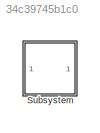
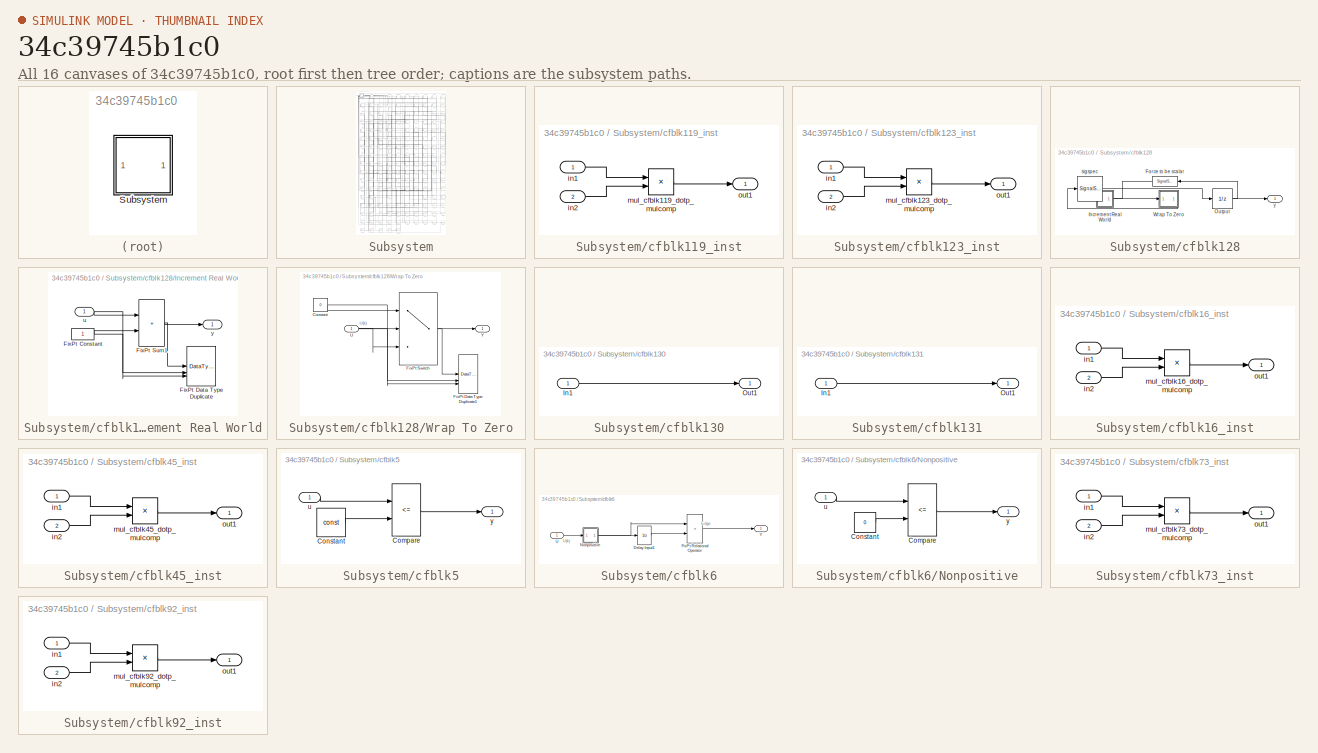
[diagram: thumbnail index - all 16 canvases of the model, root first then tree order]
MODEL slx_34c39745b1c0
KIND model
CONFIG AbsTol = auto
CONFIG EnableMultiTasking = off
CONFIG FixedStep = auto
CONFIG MaxStep = auto
CONFIG MinStep = auto
CONFIG RelTol = 1e-3
CONFIG SampleTimeConstraint = Unconstrained
CONFIG SolverName = VariableStepAuto
CONFIG StartTime = 0.0
CONFIG StopTime = 10.0
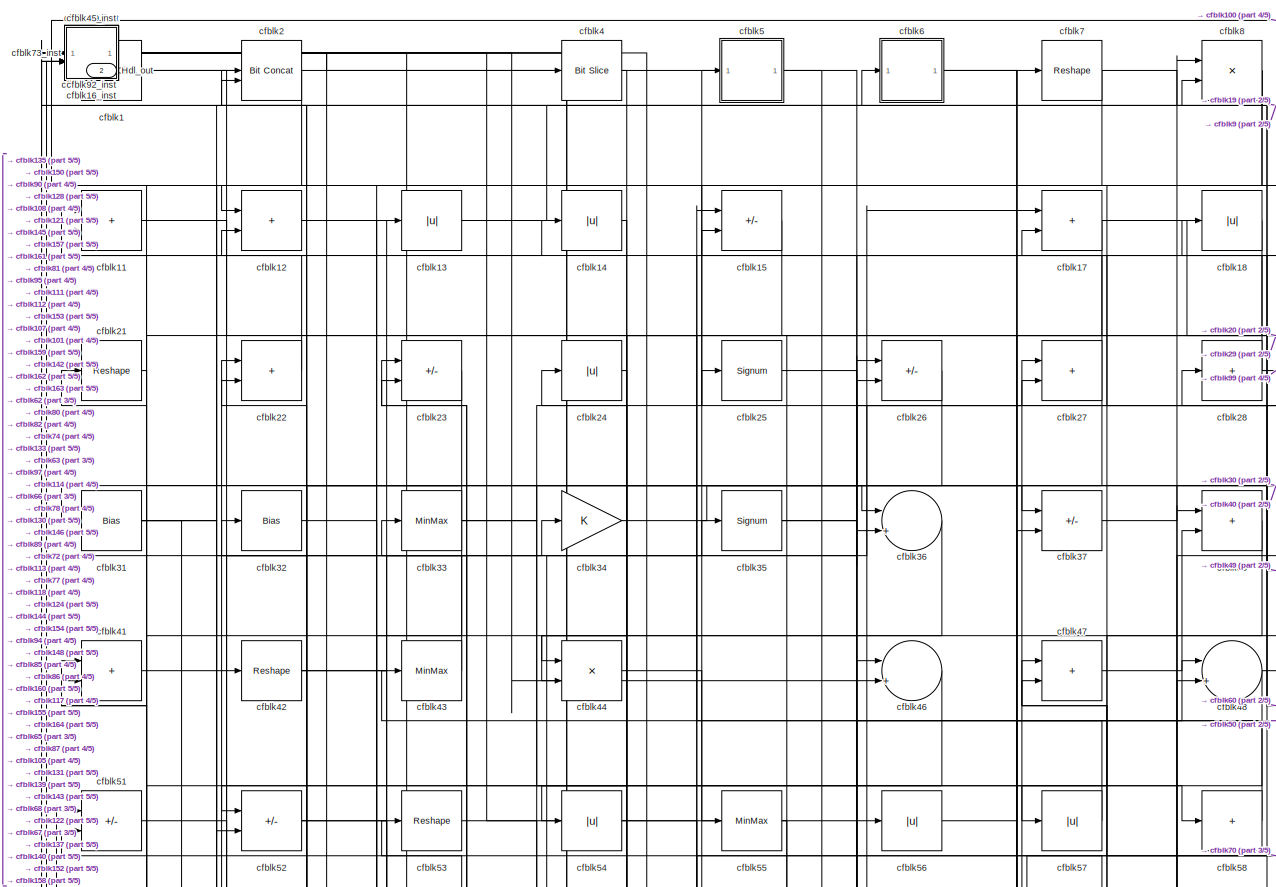
[diagram: Subsystem - part 1/5, full width, top band]
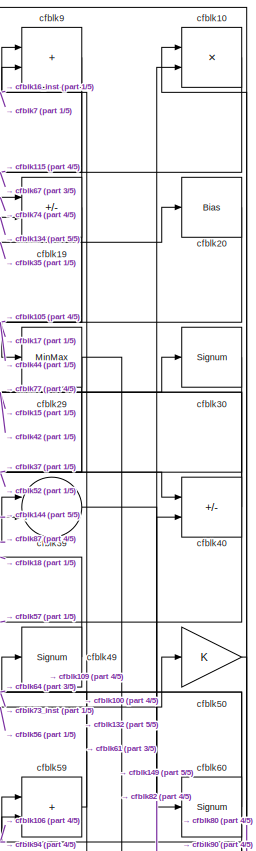
[diagram: Subsystem - part 2/5, top right region]
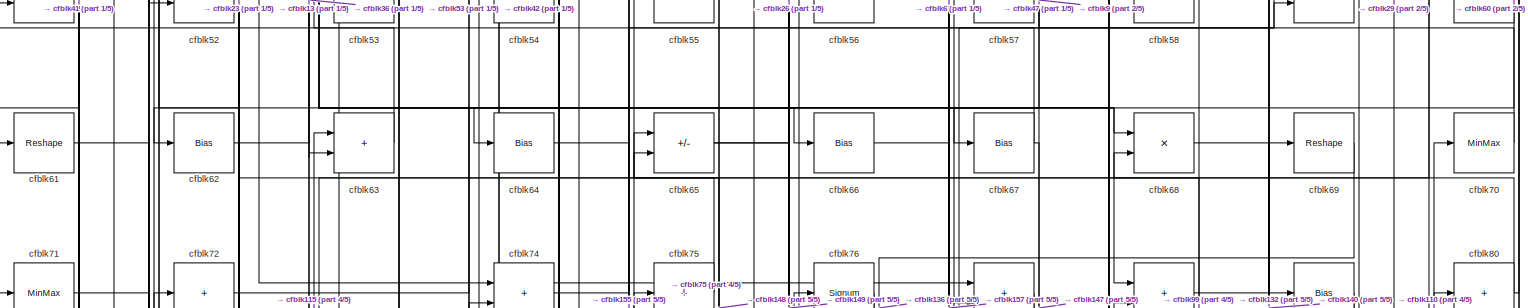
[diagram: Subsystem - part 3/5, full width, middle band]
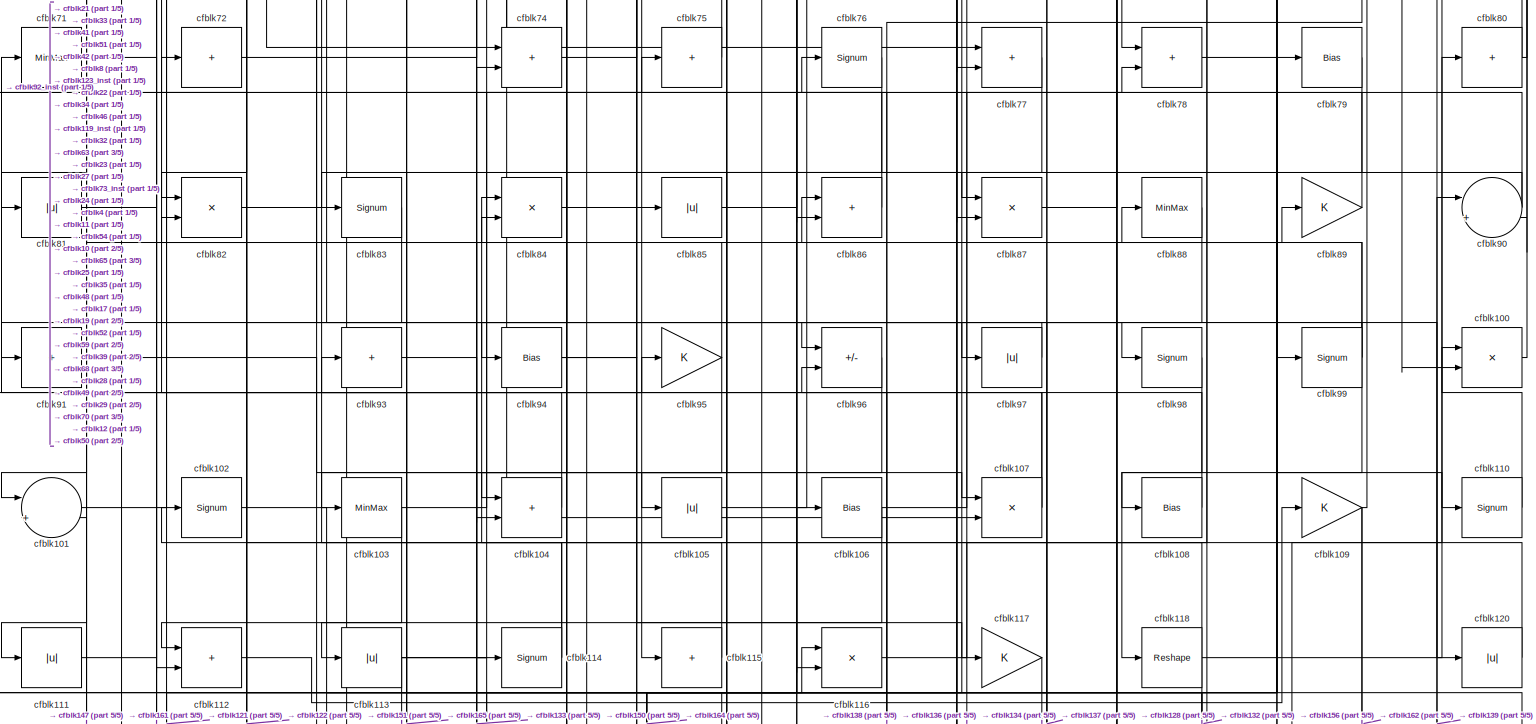
[diagram: Subsystem - part 4/5, full width, middle band]
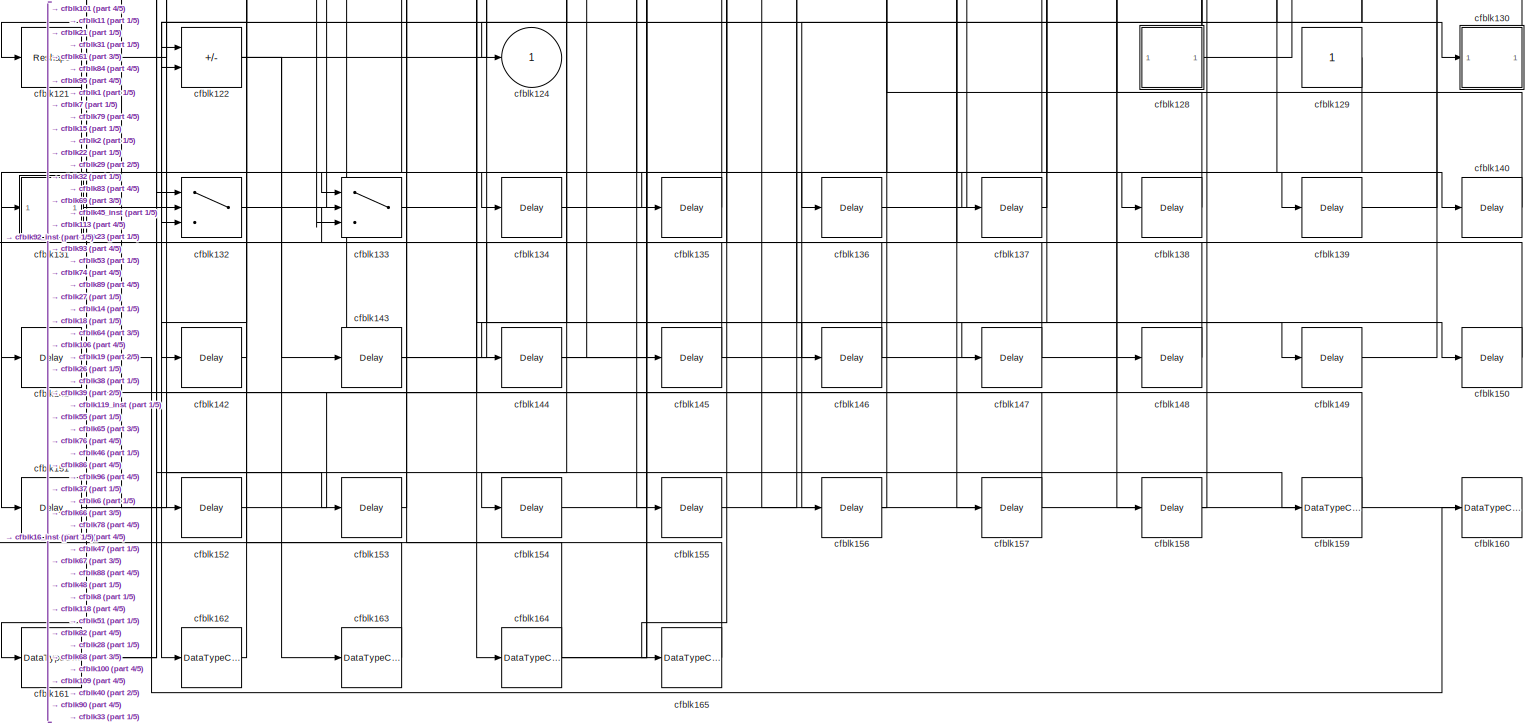
[diagram: Subsystem - part 5/5, full width, bottom band]
BLOCK [SubSystem] Subsystem
BLOCK [Outport] Subsystem/Hdl_out
  OutDataTypeStr = uint8
  Port = 2
  SampleTime = 1
BLOCK [Reference] Subsystem/cfblk1  REF=simulink/Logic and Bit
Operations/Detect
Change
  LibrarySourceBlock = hdlsllib/Logic and Bit\nOperations/Detect\nChange
  SourceBlock = simulink/Logic and Bit\nOperations/Detect\nChange
  SourceType = Detect Change
BLOCK [Product] Subsystem/cfblk10
  Inputs = */
  OutDataTypeStr = uint8
  RndMeth = Zero
  SaturateOnIntegerOverflow = on
BLOCK [Product] Subsystem/cfblk100
  Inputs = */
  OutDataTypeStr = uint8
  RndMeth = Zero
  SaturateOnIntegerOverflow = on
BLOCK [Sum] Subsystem/cfblk101
  Inputs = |++
  OutDataTypeStr = uint8
BLOCK [Signum] Subsystem/cfblk102
BLOCK [MinMax] Subsystem/cfblk103
  OutDataTypeStr = uint8
BLOCK [Sum] Subsystem/cfblk104
  IconShape = rectangular
  OutDataTypeStr = uint8
BLOCK [Abs] Subsystem/cfblk105
  OutDataTypeStr = uint8
  SaturateOnIntegerOverflow = off
BLOCK [Bias] Subsystem/cfblk106
  Bias = 0.0
  SaturateOnIntegerOverflow = off
BLOCK [Product] Subsystem/cfblk107
  Inputs = */
  OutDataTypeStr = uint8
  RndMeth = Zero
  SaturateOnIntegerOverflow = on
BLOCK [Bias] Subsystem/cfblk108
  Bias = 0.0
  SaturateOnIntegerOverflow = off
BLOCK [Gain] Subsystem/cfblk109
  OutDataTypeStr = uint8
BLOCK [Sum] Subsystem/cfblk11
  IconShape = rectangular
  OutDataTypeStr = uint8
BLOCK [Signum] Subsystem/cfblk110
BLOCK [Abs] Subsystem/cfblk111
  OutDataTypeStr = uint8
  SaturateOnIntegerOverflow = off
BLOCK [Sum] Subsystem/cfblk112
  IconShape = rectangular
  OutDataTypeStr = uint8
BLOCK [Abs] Subsystem/cfblk113
  OutDataTypeStr = uint8
  SaturateOnIntegerOverflow = off
BLOCK [Signum] Subsystem/cfblk114
BLOCK [Sum] Subsystem/cfblk115
  IconShape = rectangular
  Inputs = +
  OutDataTypeStr = uint8
BLOCK [Product] Subsystem/cfblk116
  Inputs = */
  OutDataTypeStr = uint8
  RndMeth = Zero
  SaturateOnIntegerOverflow = on
BLOCK [Gain] Subsystem/cfblk117
  OutDataTypeStr = uint8
BLOCK [Reshape] Subsystem/cfblk118
BLOCK [SubSystem] Subsystem/cfblk119_inst
BLOCK [Inport] Subsystem/cfblk119_inst/in1
  OutDataTypeStr = uint8
  SampleTime = 1
BLOCK [Inport] Subsystem/cfblk119_inst/in2
  OutDataTypeStr = uint8
  Port = 2
  SampleTime = 1
BLOCK [Product] Subsystem/cfblk119_inst/mul_cfblk119_dotp_mulcomp
  Inputs = **
  OutDataTypeStr = uint8
  SampleTime = 1
BLOCK [Outport] Subsystem/cfblk119_inst/out1
  OutDataTypeStr = uint8
  SampleTime = 1
BLOCK [Sum] Subsystem/cfblk12
  IconShape = rectangular
  OutDataTypeStr = uint8
BLOCK [Abs] Subsystem/cfblk120
  OutDataTypeStr = uint8
  SaturateOnIntegerOverflow = off
BLOCK [Reshape] Subsystem/cfblk121
BLOCK [Sum] Subsystem/cfblk122
  IconShape = rectangular
  Inputs = +-
  OutDataTypeStr = uint8
BLOCK [SubSystem] Subsystem/cfblk123_inst
BLOCK [Inport] Subsystem/cfblk123_inst/in1
  OutDataTypeStr = uint8
  SampleTime = 1
BLOCK [Inport] Subsystem/cfblk123_inst/in2
  OutDataTypeStr = uint8
  Port = 2
  SampleTime = 1
BLOCK [Product] Subsystem/cfblk123_inst/mul_cfblk123_dotp_mulcomp
  Inputs = **
  OutDataTypeStr = uint8
  SampleTime = 1
BLOCK [Outport] Subsystem/cfblk123_inst/out1
  OutDataTypeStr = uint8
  SampleTime = 1
BLOCK [Outport] Subsystem/cfblk124
  OutDataTypeStr = uint8
  SampleTime = 1
  VectorParamsAs1DForOutWhenUnconnected = off
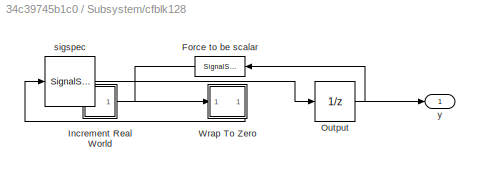
BLOCK [SubSystem] Subsystem/cfblk128
BLOCK [SignalSpecification] Subsystem/cfblk128/Force to be scalar
  Dimensions = 1
  DisableCoverage = on
BLOCK [SubSystem] Subsystem/cfblk128/Increment Real World
BLOCK [Constant] Subsystem/cfblk128/Increment Real World/FixPt Constant
  DisableCoverage = on
  OutDataTypeStr = Inherit: Inherit via back propagation
  SampleTime = -1
BLOCK [DataTypeDuplicate] Subsystem/cfblk128/Increment Real World/FixPt Data Type Duplicate
  DisableCoverage = on
  NumInputPorts = 3
BLOCK [Sum] Subsystem/cfblk128/Increment Real World/FixPt Sum1
  IconShape = rectangular
  InputSameDT = on
  LockScale = on
  OutDataTypeStr = Inherit: Inherit via back propagation
BLOCK [Inport] Subsystem/cfblk128/Increment Real World/u
  OutDataTypeStr = uint8
  SampleTime = 1
BLOCK [Outport] Subsystem/cfblk128/Increment Real World/y
  SampleTime = 1
BLOCK [UnitDelay] Subsystem/cfblk128/Output
  HasFrameUpgradeWarning = on
  InitialCondition = 0.0
  SampleTime = tsamp
BLOCK [SubSystem] Subsystem/cfblk128/Wrap To Zero
BLOCK [Constant] Subsystem/cfblk128/Wrap To Zero/Constant
  DisableCoverage = on
  OutDataTypeStr = Inherit: Inherit via back propagation
  SampleTime = -1
  Value = 0
BLOCK [DataTypeDuplicate] Subsystem/cfblk128/Wrap To Zero/FixPt Data Type Duplicate1
  DisableCoverage = on
  NumInputPorts = 3
BLOCK [Switch] Subsystem/cfblk128/Wrap To Zero/FixPt Switch
  Criteria = u2 > Threshold
  InputSameDT = off
  OutDataTypeStr = Inherit: Inherit via back propagation
  SaturateOnIntegerOverflow = off
  Threshold = Threshold
  ZeroCross = off
BLOCK [Inport] Subsystem/cfblk128/Wrap To Zero/U
  OutDataTypeStr = uint8
  SampleTime = 1
BLOCK [Outport] Subsystem/cfblk128/Wrap To Zero/Y
  SampleTime = 1
BLOCK [SignalSpecification] Subsystem/cfblk128/sigspec
  Dimensions = 1
  OutDataTypeStr = uint8
BLOCK [Outport] Subsystem/cfblk128/y
  SampleTime = 1
BLOCK [Constant] Subsystem/cfblk129
  OutDataTypeStr = uint8
  SampleTime = -1
BLOCK [Abs] Subsystem/cfblk13
  OutDataTypeStr = uint8
  SaturateOnIntegerOverflow = off
BLOCK [SubSystem] Subsystem/cfblk130
BLOCK [Inport] Subsystem/cfblk130/In1
  OutDataTypeStr = uint8
  PortDimensions = 1
  SampleTime = 1
BLOCK [Outport] Subsystem/cfblk130/Out1
  SampleTime = 1
BLOCK [SubSystem] Subsystem/cfblk131
BLOCK [Inport] Subsystem/cfblk131/In1
  OutDataTypeStr = uint8
  PortDimensions = 1
  SampleTime = 1
BLOCK [Outport] Subsystem/cfblk131/Out1
  SampleTime = 1
BLOCK [Switch] Subsystem/cfblk132
  InputSameDT = off
  OutDataTypeStr = uint8
  SaturateOnIntegerOverflow = off
BLOCK [Switch] Subsystem/cfblk133
  InputSameDT = off
  OutDataTypeStr = uint8
  SaturateOnIntegerOverflow = off
BLOCK [Delay] Subsystem/cfblk134
  InputPortMap = u0
  SampleTime = 1
BLOCK [Delay] Subsystem/cfblk135
  InputPortMap = u0
  SampleTime = 1
BLOCK [Delay] Subsystem/cfblk136
  InputPortMap = u0
  SampleTime = 1
BLOCK [Delay] Subsystem/cfblk137
  InputPortMap = u0
  SampleTime = 1
BLOCK [Delay] Subsystem/cfblk138
  InputPortMap = u0
  SampleTime = 1
BLOCK [Delay] Subsystem/cfblk139
  InputPortMap = u0
  SampleTime = 1
BLOCK [Abs] Subsystem/cfblk14
  OutDataTypeStr = uint8
  SaturateOnIntegerOverflow = off
BLOCK [Delay] Subsystem/cfblk140
  InputPortMap = u0
  SampleTime = 1
BLOCK [Delay] Subsystem/cfblk141
  InputPortMap = u0
  SampleTime = 1
BLOCK [Delay] Subsystem/cfblk142
  InputPortMap = u0
  SampleTime = 1
BLOCK [Delay] Subsystem/cfblk143
  InputPortMap = u0
  SampleTime = 1
BLOCK [Delay] Subsystem/cfblk144
  InputPortMap = u0
  SampleTime = 1
BLOCK [Delay] Subsystem/cfblk145
  InputPortMap = u0
  SampleTime = 1
BLOCK [Delay] Subsystem/cfblk146
  InputPortMap = u0
  SampleTime = 1
BLOCK [Delay] Subsystem/cfblk147
  InputPortMap = u0
  SampleTime = 1
BLOCK [Delay] Subsystem/cfblk148
  InputPortMap = u0
  SampleTime = 1
BLOCK [Delay] Subsystem/cfblk149
  InputPortMap = u0
  SampleTime = 1
BLOCK [Sum] Subsystem/cfblk15
  IconShape = rectangular
  Inputs = +-
  OutDataTypeStr = uint8
BLOCK [Delay] Subsystem/cfblk150
  InputPortMap = u0
  SampleTime = 1
BLOCK [Delay] Subsystem/cfblk151
  InputPortMap = u0
  SampleTime = 1
BLOCK [Delay] Subsystem/cfblk152
  InputPortMap = u0
  SampleTime = 1
BLOCK [Delay] Subsystem/cfblk153
  InputPortMap = u0
  SampleTime = 1
BLOCK [Delay] Subsystem/cfblk154
  InputPortMap = u0
  SampleTime = 1
BLOCK [Delay] Subsystem/cfblk155
  InputPortMap = u0
  SampleTime = 1
BLOCK [Delay] Subsystem/cfblk156
  InputPortMap = u0
  SampleTime = 1
BLOCK [Delay] Subsystem/cfblk157
  InputPortMap = u0
  SampleTime = 1
BLOCK [Delay] Subsystem/cfblk158
  InputPortMap = u0
  SampleTime = 1
BLOCK [DataTypeConversion] Subsystem/cfblk159
  OutDataTypeStr = uint8
  RndMeth = Floor
  SaturateOnIntegerOverflow = off
BLOCK [DataTypeConversion] Subsystem/cfblk160
  OutDataTypeStr = uint8
  RndMeth = Floor
  SaturateOnIntegerOverflow = off
BLOCK [DataTypeConversion] Subsystem/cfblk161
  OutDataTypeStr = uint8
  RndMeth = Floor
  SaturateOnIntegerOverflow = off
BLOCK [DataTypeConversion] Subsystem/cfblk162
  OutDataTypeStr = uint8
  RndMeth = Floor
  SaturateOnIntegerOverflow = off
BLOCK [DataTypeConversion] Subsystem/cfblk163
  OutDataTypeStr = uint8
  RndMeth = Floor
  SaturateOnIntegerOverflow = off
BLOCK [DataTypeConversion] Subsystem/cfblk164
  OutDataTypeStr = uint8
  RndMeth = Floor
  SaturateOnIntegerOverflow = off
BLOCK [DataTypeConversion] Subsystem/cfblk165
  OutDataTypeStr = uint8
  RndMeth = Floor
  SaturateOnIntegerOverflow = off
BLOCK [SubSystem] Subsystem/cfblk16_inst
BLOCK [Inport] Subsystem/cfblk16_inst/in1
  OutDataTypeStr = uint8
  SampleTime = 1
BLOCK [Inport] Subsystem/cfblk16_inst/in2
  OutDataTypeStr = uint8
  Port = 2
  SampleTime = 1
BLOCK [Product] Subsystem/cfblk16_inst/mul_cfblk16_dotp_mulcomp
  Inputs = **
  OutDataTypeStr = uint8
  SampleTime = 1
BLOCK [Outport] Subsystem/cfblk16_inst/out1
  OutDataTypeStr = uint8
  SampleTime = 1
BLOCK [Sum] Subsystem/cfblk17
  IconShape = rectangular
  OutDataTypeStr = uint8
BLOCK [Abs] Subsystem/cfblk18
  OutDataTypeStr = uint8
  SaturateOnIntegerOverflow = off
BLOCK [Sum] Subsystem/cfblk19
  IconShape = rectangular
  Inputs = +-
  OutDataTypeStr = uint8
BLOCK [Reference] Subsystem/cfblk2  REF=hdlsllib/Logic and Bit
Operations/Bit Concat
  SourceBlock = hdlsllib/Logic and Bit\nOperations/Bit Concat
  SourceType = Bit Concat
BLOCK [Bias] Subsystem/cfblk20
  Bias = 0.0
  SaturateOnIntegerOverflow = off
BLOCK [Reshape] Subsystem/cfblk21
BLOCK [Sum] Subsystem/cfblk22
  IconShape = rectangular
  OutDataTypeStr = uint8
BLOCK [Sum] Subsystem/cfblk23
  IconShape = rectangular
  Inputs = +-
  OutDataTypeStr = uint8
BLOCK [Abs] Subsystem/cfblk24
  OutDataTypeStr = uint8
  SaturateOnIntegerOverflow = off
BLOCK [Signum] Subsystem/cfblk25
BLOCK [Sum] Subsystem/cfblk26
  IconShape = rectangular
  Inputs = +-
  OutDataTypeStr = uint8
BLOCK [Sum] Subsystem/cfblk27
  IconShape = rectangular
  OutDataTypeStr = uint8
BLOCK [Sum] Subsystem/cfblk28
  IconShape = rectangular
  Inputs = +
  OutDataTypeStr = uint8
BLOCK [MinMax] Subsystem/cfblk29
  OutDataTypeStr = uint8
BLOCK [Signum] Subsystem/cfblk30
BLOCK [Bias] Subsystem/cfblk31
  Bias = 0.0
  SaturateOnIntegerOverflow = off
BLOCK [Bias] Subsystem/cfblk32
  Bias = 0.0
  SaturateOnIntegerOverflow = off
BLOCK [MinMax] Subsystem/cfblk33
  OutDataTypeStr = uint8
BLOCK [Gain] Subsystem/cfblk34
  OutDataTypeStr = uint8
BLOCK [Signum] Subsystem/cfblk35
BLOCK [Sum] Subsystem/cfblk36
  Inputs = |++
  OutDataTypeStr = uint8
BLOCK [Sum] Subsystem/cfblk37
  IconShape = rectangular
  Inputs = +-
  OutDataTypeStr = uint8
BLOCK [Sum] Subsystem/cfblk38
  IconShape = rectangular
  OutDataTypeStr = uint8
BLOCK [Sum] Subsystem/cfblk39
  Inputs = |++
  OutDataTypeStr = uint8
BLOCK [Reference] Subsystem/cfblk4  REF=hdlsllib/Logic and Bit
Operations/Bit Slice
  SourceBlock = hdlsllib/Logic and Bit\nOperations/Bit Slice
  SourceType = Bit Slice
BLOCK [Sum] Subsystem/cfblk40
  IconShape = rectangular
  Inputs = +-
  OutDataTypeStr = uint8
BLOCK [Sum] Subsystem/cfblk41
  IconShape = rectangular
  OutDataTypeStr = uint8
BLOCK [Reshape] Subsystem/cfblk42
BLOCK [MinMax] Subsystem/cfblk43
  OutDataTypeStr = uint8
BLOCK [Product] Subsystem/cfblk44
  Inputs = */
  OutDataTypeStr = uint8
  RndMeth = Zero
  SaturateOnIntegerOverflow = on
BLOCK [SubSystem] Subsystem/cfblk45_inst
BLOCK [Inport] Subsystem/cfblk45_inst/in1
  OutDataTypeStr = uint8
  SampleTime = 1
BLOCK [Inport] Subsystem/cfblk45_inst/in2
  OutDataTypeStr = uint8
  Port = 2
  SampleTime = 1
BLOCK [Product] Subsystem/cfblk45_inst/mul_cfblk45_dotp_mulcomp
  Inputs = **
  OutDataTypeStr = uint8
  SampleTime = 1
BLOCK [Outport] Subsystem/cfblk45_inst/out1
  OutDataTypeStr = uint8
  SampleTime = 1
BLOCK [Sum] Subsystem/cfblk46
  Inputs = |++
  OutDataTypeStr = uint8
BLOCK [Sum] Subsystem/cfblk47
  IconShape = rectangular
  OutDataTypeStr = uint8
BLOCK [Sum] Subsystem/cfblk48
  Inputs = |++
  OutDataTypeStr = uint8
BLOCK [Signum] Subsystem/cfblk49
BLOCK [SubSystem] Subsystem/cfblk5
BLOCK [RelationalOperator] Subsystem/cfblk5/Compare
  Operator = <=
  OutDataTypeStr = fixdt(0, 8)
BLOCK [Constant] Subsystem/cfblk5/Constant
  DisableCoverage = on
  OutDataTypeStr = Inherit: Inherit via back propagation
  SampleTime = -1
  Value = const
BLOCK [Inport] Subsystem/cfblk5/u
  OutDataTypeStr = uint8
  SampleTime = 1
BLOCK [Outport] Subsystem/cfblk5/y
  SampleTime = 1
BLOCK [Gain] Subsystem/cfblk50
  OutDataTypeStr = uint8
BLOCK [Sum] Subsystem/cfblk51
  IconShape = rectangular
  Inputs = +-
  OutDataTypeStr = uint8
BLOCK [Sum] Subsystem/cfblk52
  IconShape = rectangular
  Inputs = +-
  OutDataTypeStr = uint8
BLOCK [Reshape] Subsystem/cfblk53
BLOCK [Abs] Subsystem/cfblk54
  OutDataTypeStr = uint8
  SaturateOnIntegerOverflow = off
BLOCK [MinMax] Subsystem/cfblk55
  OutDataTypeStr = uint8
BLOCK [Abs] Subsystem/cfblk56
  OutDataTypeStr = uint8
  SaturateOnIntegerOverflow = off
BLOCK [Abs] Subsystem/cfblk57
  OutDataTypeStr = uint8
  SaturateOnIntegerOverflow = off
BLOCK [Sum] Subsystem/cfblk58
  IconShape = rectangular
  Inputs = +
  OutDataTypeStr = uint8
BLOCK [Sum] Subsystem/cfblk59
  IconShape = rectangular
  OutDataTypeStr = uint8
BLOCK [SubSystem] Subsystem/cfblk6
BLOCK [UnitDelay] Subsystem/cfblk6/Delay Input1
  Description = Store in Global RAM
  DisableCoverage = on
  HasFrameUpgradeWarning = on
  InitialCondition = vinit
  SampleTime = -1
BLOCK [RelationalOperator] Subsystem/cfblk6/FixPt Relational Operator
  InputSameDT = off
  Operator = >
  OutDataTypeStr = fixdt(0, 8)
  ZeroCross = off
BLOCK [SubSystem] Subsystem/cfblk6/Nonpositive
BLOCK [RelationalOperator] Subsystem/cfblk6/Nonpositive/Compare
  Operator = <=
  OutDataTypeStr = boolean
  ZeroCross = off
BLOCK [Constant] Subsystem/cfblk6/Nonpositive/Constant
  DisableCoverage = on
  OutDataTypeStr = Inherit: Inherit via back propagation
  PreserveConstantTs = on
  SampleTime = -1
  Value = 0
BLOCK [Inport] Subsystem/cfblk6/Nonpositive/u
  OutDataTypeStr = uint8
  SampleTime = 1
BLOCK [Outport] Subsystem/cfblk6/Nonpositive/y
  SampleTime = 1
BLOCK [Inport] Subsystem/cfblk6/U
  OutDataTypeStr = uint8
  SampleTime = 1
BLOCK [Outport] Subsystem/cfblk6/Y
  SampleTime = 1
BLOCK [Signum] Subsystem/cfblk60
BLOCK [Reshape] Subsystem/cfblk61
BLOCK [Bias] Subsystem/cfblk62
  Bias = 0.0
  SaturateOnIntegerOverflow = off
BLOCK [Sum] Subsystem/cfblk63
  IconShape = rectangular
  OutDataTypeStr = uint8
BLOCK [Bias] Subsystem/cfblk64
  Bias = 0.0
  SaturateOnIntegerOverflow = off
BLOCK [Sum] Subsystem/cfblk65
  IconShape = rectangular
  Inputs = +-
  OutDataTypeStr = uint8
BLOCK [Bias] Subsystem/cfblk66
  Bias = 0.0
  SaturateOnIntegerOverflow = off
BLOCK [Bias] Subsystem/cfblk67
  Bias = 0.0
  SaturateOnIntegerOverflow = off
BLOCK [Product] Subsystem/cfblk68
  Inputs = */
  OutDataTypeStr = uint8
  RndMeth = Zero
  SaturateOnIntegerOverflow = on
BLOCK [Reshape] Subsystem/cfblk69
BLOCK [Reshape] Subsystem/cfblk7
BLOCK [MinMax] Subsystem/cfblk70
  OutDataTypeStr = uint8
BLOCK [MinMax] Subsystem/cfblk71
  OutDataTypeStr = uint8
BLOCK [Sum] Subsystem/cfblk72
  IconShape = rectangular
  Inputs = +
  OutDataTypeStr = uint8
BLOCK [SubSystem] Subsystem/cfblk73_inst
BLOCK [Inport] Subsystem/cfblk73_inst/in1
  OutDataTypeStr = uint8
  SampleTime = 1
BLOCK [Inport] Subsystem/cfblk73_inst/in2
  OutDataTypeStr = uint8
  Port = 2
  SampleTime = 1
BLOCK [Product] Subsystem/cfblk73_inst/mul_cfblk73_dotp_mulcomp
  Inputs = **
  OutDataTypeStr = uint8
  SampleTime = 1
BLOCK [Outport] Subsystem/cfblk73_inst/out1
  OutDataTypeStr = uint8
  SampleTime = 1
BLOCK [Sum] Subsystem/cfblk74
  IconShape = rectangular
  OutDataTypeStr = uint8
BLOCK [Sum] Subsystem/cfblk75
  IconShape = rectangular
  Inputs = +
  OutDataTypeStr = uint8
BLOCK [Signum] Subsystem/cfblk76
BLOCK [Sum] Subsystem/cfblk77
  IconShape = rectangular
  OutDataTypeStr = uint8
BLOCK [Sum] Subsystem/cfblk78
  IconShape = rectangular
  OutDataTypeStr = uint8
BLOCK [Bias] Subsystem/cfblk79
  Bias = 0.0
  SaturateOnIntegerOverflow = off
BLOCK [Product] Subsystem/cfblk8
  Inputs = */
  OutDataTypeStr = uint8
  RndMeth = Zero
  SaturateOnIntegerOverflow = on
BLOCK [Sum] Subsystem/cfblk80
  IconShape = rectangular
  Inputs = +
  OutDataTypeStr = uint8
BLOCK [Abs] Subsystem/cfblk81
  OutDataTypeStr = uint8
  SaturateOnIntegerOverflow = off
BLOCK [Product] Subsystem/cfblk82
  Inputs = */
  OutDataTypeStr = uint8
  RndMeth = Zero
  SaturateOnIntegerOverflow = on
BLOCK [Signum] Subsystem/cfblk83
BLOCK [Product] Subsystem/cfblk84
  Inputs = */
  OutDataTypeStr = uint8
  RndMeth = Zero
  SaturateOnIntegerOverflow = on
BLOCK [Abs] Subsystem/cfblk85
  OutDataTypeStr = uint8
  SaturateOnIntegerOverflow = off
BLOCK [Sum] Subsystem/cfblk86
  IconShape = rectangular
  OutDataTypeStr = uint8
BLOCK [Product] Subsystem/cfblk87
  Inputs = */
  OutDataTypeStr = uint8
  RndMeth = Zero
  SaturateOnIntegerOverflow = on
BLOCK [MinMax] Subsystem/cfblk88
  OutDataTypeStr = uint8
BLOCK [Gain] Subsystem/cfblk89
  OutDataTypeStr = uint8
BLOCK [Sum] Subsystem/cfblk9
  IconShape = rectangular
  OutDataTypeStr = uint8
BLOCK [Sum] Subsystem/cfblk90
  Inputs = |++
  OutDataTypeStr = uint8
BLOCK [Sum] Subsystem/cfblk91
  IconShape = rectangular
  Inputs = +
  OutDataTypeStr = uint8
BLOCK [SubSystem] Subsystem/cfblk92_inst
BLOCK [Inport] Subsystem/cfblk92_inst/in1
  OutDataTypeStr = uint8
  SampleTime = 1
BLOCK [Inport] Subsystem/cfblk92_inst/in2
  OutDataTypeStr = uint8
  Port = 2
  SampleTime = 1
BLOCK [Product] Subsystem/cfblk92_inst/mul_cfblk92_dotp_mulcomp
  Inputs = **
  OutDataTypeStr = uint8
  SampleTime = 1
BLOCK [Outport] Subsystem/cfblk92_inst/out1
  OutDataTypeStr = uint8
  SampleTime = 1
BLOCK [Sum] Subsystem/cfblk93
  IconShape = rectangular
  Inputs = +
  OutDataTypeStr = uint8
BLOCK [Bias] Subsystem/cfblk94
  Bias = 0.0
  SaturateOnIntegerOverflow = off
BLOCK [Gain] Subsystem/cfblk95
  OutDataTypeStr = uint8
BLOCK [Sum] Subsystem/cfblk96
  IconShape = rectangular
  Inputs = +-
  OutDataTypeStr = uint8
BLOCK [Abs] Subsystem/cfblk97
  OutDataTypeStr = uint8
  SaturateOnIntegerOverflow = off
BLOCK [Signum] Subsystem/cfblk98
BLOCK [Signum] Subsystem/cfblk99
ANNOTATION Subsystem/cfblk128/Wrap To Zero: U(k)
ANNOTATION Subsystem/cfblk6: Edge
ANNOTATION Subsystem/cfblk6: U(k)
LINE Subsystem/cfblk100:1 -> Subsystem/cfblk12:1
LINE Subsystem/cfblk101:1 -> Subsystem/cfblk34:1
LINE Subsystem/cfblk102:1 -> Subsystem/cfblk116:1
NET Subsystem/cfblk103:1 -> Subsystem/cfblk113:1, Subsystem/cfblk75:1
LINE Subsystem/cfblk104:1 -> Subsystem/cfblk71:1
LINE Subsystem/cfblk105:1 -> Subsystem/cfblk17:1
NET Subsystem/cfblk106:1 -> Subsystem/cfblk112:1, Subsystem/cfblk59:1
NET Subsystem/cfblk107:1 -> Subsystem/cfblk123_inst:2, Subsystem/cfblk22:1
LINE Subsystem/cfblk108:1 -> Subsystem/cfblk51:2
NET Subsystem/cfblk109:1 -> Subsystem/cfblk156:1, Subsystem/cfblk162:1, Subsystem/cfblk49:1
LINE Subsystem/cfblk10:1 -> Subsystem/cfblk115:1
LINE Subsystem/cfblk110:1 -> Subsystem/cfblk70:1
LINE Subsystem/cfblk111:1 -> Subsystem/cfblk42:1
LINE Subsystem/cfblk112:1 -> Subsystem/cfblk109:1
NET Subsystem/cfblk113:1 -> Subsystem/cfblk150:1, Subsystem/cfblk151:1, Subsystem/cfblk27:1
NET Subsystem/cfblk114:1 -> Subsystem/cfblk102:1, Subsystem/cfblk84:1
LINE Subsystem/cfblk115:1 -> Subsystem/cfblk63:1
LINE Subsystem/cfblk116:1 -> Subsystem/cfblk88:1
LINE Subsystem/cfblk117:1 -> Subsystem/cfblk134:1
NET Subsystem/cfblk118:1 -> Subsystem/cfblk132:3, Subsystem/cfblk24:1, Subsystem/cfblk80:1
LINE Subsystem/cfblk119_inst/in1:1 -> Subsystem/cfblk119_inst/mul_cfblk119_dotp_mulcomp:1
LINE Subsystem/cfblk119_inst/in2:1 -> Subsystem/cfblk119_inst/mul_cfblk119_dotp_mulcomp:2
LINE Subsystem/cfblk119_inst/mul_cfblk119_dotp_mulcomp:1 -> Subsystem/cfblk119_inst/out1:1
LINE Subsystem/cfblk119_inst:1 -> Subsystem/cfblk74:1
LINE Subsystem/cfblk11:1 -> Subsystem/cfblk85:1
LINE Subsystem/cfblk120:1 -> Subsystem/cfblk72:1
NET Subsystem/cfblk121:1 -> Subsystem/cfblk141:1, Subsystem/cfblk79:1
NET Subsystem/cfblk122:1 -> Subsystem/cfblk143:1, Subsystem/cfblk163:1, Subsystem/cfblk27:2
LINE Subsystem/cfblk123_inst/in1:1 -> Subsystem/cfblk123_inst/mul_cfblk123_dotp_mulcomp:1
LINE Subsystem/cfblk123_inst/in2:1 -> Subsystem/cfblk123_inst/mul_cfblk123_dotp_mulcomp:2
LINE Subsystem/cfblk123_inst/mul_cfblk123_dotp_mulcomp:1 -> Subsystem/cfblk123_inst/out1:1
LINE Subsystem/cfblk123_inst:1 -> Subsystem/cfblk77:1
NET Subsystem/cfblk128:1 -> Subsystem/cfblk100:1, Subsystem/cfblk51:1, Subsystem/cfblk82:2
LINE Subsystem/cfblk129:1 -> Subsystem/cfblk131:1
LINE Subsystem/cfblk12:1 -> Subsystem/cfblk114:1
LINE Subsystem/cfblk130/In1:1 -> Subsystem/cfblk130/Out1:1
LINE Subsystem/cfblk130:1 -> Subsystem/cfblk33:1
LINE Subsystem/cfblk131/In1:1 -> Subsystem/cfblk131/Out1:1
LINE Subsystem/cfblk131:1 -> Subsystem/cfblk7:1
LINE Subsystem/cfblk132:1 -> Subsystem/cfblk69:1
LINE Subsystem/cfblk133:1 -> Subsystem/cfblk89:1
LINE Subsystem/cfblk134:1 -> Subsystem/cfblk19:2
LINE Subsystem/cfblk135:1 -> Subsystem/cfblk119_inst:2
LINE Subsystem/cfblk136:1 -> Subsystem/cfblk78:2
LINE Subsystem/cfblk137:1 -> Subsystem/cfblk47:1
LINE Subsystem/cfblk138:1 -> Subsystem/cfblk86:1
LINE Subsystem/cfblk139:1 -> Subsystem/cfblk90:1
LINE Subsystem/cfblk13:1 -> Subsystem/cfblk8:2
LINE Subsystem/cfblk140:1 -> Subsystem/cfblk8:1
LINE Subsystem/cfblk141:1 -> Subsystem/cfblk160:1
LINE Subsystem/cfblk142:1 -> Subsystem/cfblk22:2
LINE Subsystem/cfblk143:1 -> Subsystem/cfblk37:2
LINE Subsystem/cfblk144:1 -> Subsystem/cfblk39:2
LINE Subsystem/cfblk145:1 -> Subsystem/cfblk11:1
LINE Subsystem/cfblk146:1 -> Subsystem/cfblk23:1
LINE Subsystem/cfblk147:1 -> Subsystem/cfblk101:2
LINE Subsystem/cfblk148:1 -> Subsystem/cfblk65:1
LINE Subsystem/cfblk149:1 -> Subsystem/cfblk40:2
LINE Subsystem/cfblk14:1 -> Subsystem/cfblk154:1
LINE Subsystem/cfblk150:1 -> Subsystem/cfblk92_inst:2
LINE Subsystem/cfblk151:1 -> Subsystem/cfblk74:2
LINE Subsystem/cfblk152:1 -> Subsystem/cfblk48:2
LINE Subsystem/cfblk153:1 -> Subsystem/cfblk133:2
LINE Subsystem/cfblk154:1 -> Subsystem/cfblk38:1
LINE Subsystem/cfblk155:1 -> Subsystem/cfblk46:1
LINE Subsystem/cfblk156:1 -> Subsystem/cfblk96:2
LINE Subsystem/cfblk157:1 -> Subsystem/cfblk21:1
LINE Subsystem/cfblk158:1 -> Subsystem/cfblk28:1
LINE Subsystem/cfblk159:1 -> Subsystem/cfblk32:1
LINE Subsystem/cfblk15:1 -> Subsystem/cfblk142:1
LINE Subsystem/cfblk160:1 -> Subsystem/cfblk1:1
NET Subsystem/cfblk161:1 -> Subsystem/cfblk84:2, Subsystem/cfblk95:1
LINE Subsystem/cfblk162:1 -> Subsystem/cfblk2:1
LINE Subsystem/cfblk163:1 -> Subsystem/cfblk2:2
NET Subsystem/cfblk164:1 -> Subsystem/cfblk106:1, Subsystem/cfblk16_inst:1, Subsystem/cfblk26:2
LINE Subsystem/cfblk165:1 -> Subsystem/cfblk93:1
LINE Subsystem/cfblk16_inst/in1:1 -> Subsystem/cfblk16_inst/mul_cfblk16_dotp_mulcomp:1
LINE Subsystem/cfblk16_inst/in2:1 -> Subsystem/cfblk16_inst/mul_cfblk16_dotp_mulcomp:2
LINE Subsystem/cfblk16_inst/mul_cfblk16_dotp_mulcomp:1 -> Subsystem/cfblk16_inst/out1:1
NET Subsystem/cfblk16_inst:1 -> Subsystem/Hdl_out:1, Subsystem/cfblk46:2
NET Subsystem/cfblk17:1 -> Subsystem/cfblk29:1, Subsystem/cfblk81:1
LINE Subsystem/cfblk18:1 -> Subsystem/cfblk124:1
NET Subsystem/cfblk19:1 -> Subsystem/cfblk105:1, Subsystem/cfblk16_inst:2, Subsystem/cfblk77:2
LINE Subsystem/cfblk1:1 -> Subsystem/cfblk159:1
LINE Subsystem/cfblk20:1 -> Subsystem/cfblk44:2
LINE Subsystem/cfblk21:1 -> Subsystem/cfblk111:1
LINE Subsystem/cfblk22:1 -> Subsystem/cfblk11:2
LINE Subsystem/cfblk23:1 -> Subsystem/cfblk62:1
LINE Subsystem/cfblk24:1 -> Subsystem/cfblk44:1
LINE Subsystem/cfblk25:1 -> Subsystem/cfblk87:1
LINE Subsystem/cfblk26:1 -> Subsystem/cfblk122:2
NET Subsystem/cfblk27:1 -> Subsystem/cfblk144:1, Subsystem/cfblk45_inst:1
NET Subsystem/cfblk28:1 -> Subsystem/cfblk5:1, Subsystem/cfblk99:1
NET Subsystem/cfblk29:1 -> Subsystem/cfblk100:2, Subsystem/cfblk132:2, Subsystem/cfblk61:1
LINE Subsystem/cfblk2:1 -> Subsystem/cfblk161:1
LINE Subsystem/cfblk30:1 -> Subsystem/cfblk52:1
NET Subsystem/cfblk31:1 -> Subsystem/cfblk14:1, Subsystem/cfblk152:1, Subsystem/cfblk153:1
LINE Subsystem/cfblk32:1 -> Subsystem/cfblk97:1
NET Subsystem/cfblk33:1 -> Subsystem/cfblk101:1, Subsystem/cfblk31:1, Subsystem/cfblk36:1, Subsystem/cfblk58:1
LINE Subsystem/cfblk34:1 -> Subsystem/cfblk37:1
NET Subsystem/cfblk35:1 -> Subsystem/cfblk117:1, Subsystem/cfblk20:1
LINE Subsystem/cfblk36:1 -> Subsystem/cfblk63:2
LINE Subsystem/cfblk37:1 -> Subsystem/cfblk40:1
LINE Subsystem/cfblk38:1 -> Subsystem/cfblk54:1
LINE Subsystem/cfblk39:1 -> Subsystem/cfblk60:1
NET Subsystem/cfblk40:1 -> Subsystem/cfblk15:2, Subsystem/cfblk17:2, Subsystem/cfblk57:1
LINE Subsystem/cfblk41:1 -> Subsystem/cfblk6:1
NET Subsystem/cfblk42:1 -> Subsystem/cfblk30:1, Subsystem/cfblk66:1
LINE Subsystem/cfblk43:1 -> Subsystem/cfblk123_inst:1
LINE Subsystem/cfblk44:1 -> Subsystem/cfblk55:1
LINE Subsystem/cfblk45_inst/in1:1 -> Subsystem/cfblk45_inst/mul_cfblk45_dotp_mulcomp:1
LINE Subsystem/cfblk45_inst/in2:1 -> Subsystem/cfblk45_inst/mul_cfblk45_dotp_mulcomp:2
LINE Subsystem/cfblk45_inst/mul_cfblk45_dotp_mulcomp:1 -> Subsystem/cfblk45_inst/out1:1
NET Subsystem/cfblk45_inst:1 -> Subsystem/cfblk145:1, Subsystem/cfblk148:1, Subsystem/cfblk4:1
LINE Subsystem/cfblk46:1 -> Subsystem/cfblk82:1
LINE Subsystem/cfblk47:1 -> Subsystem/cfblk38:2
NET Subsystem/cfblk48:1 -> Subsystem/cfblk121:1, Subsystem/cfblk130:1
LINE Subsystem/cfblk49:1 -> Subsystem/cfblk18:1
LINE Subsystem/cfblk4:1 -> Subsystem/cfblk94:1
LINE Subsystem/cfblk50:1 -> Subsystem/cfblk90:2
LINE Subsystem/cfblk51:1 -> Subsystem/cfblk158:1
NET Subsystem/cfblk52:1 -> Subsystem/cfblk78:1, Subsystem/cfblk87:2
LINE Subsystem/cfblk53:1 -> Subsystem/cfblk146:1
LINE Subsystem/cfblk54:1 -> Subsystem/cfblk86:2
LINE Subsystem/cfblk55:1 -> Subsystem/cfblk135:1
LINE Subsystem/cfblk56:1 -> Subsystem/cfblk50:1
LINE Subsystem/cfblk57:1 -> Subsystem/cfblk43:1
LINE Subsystem/cfblk58:1 -> Subsystem/cfblk15:1
LINE Subsystem/cfblk59:1 -> Subsystem/cfblk9:1
LINE Subsystem/cfblk5:1 -> Subsystem/cfblk36:2
NET Subsystem/cfblk60:1 -> Subsystem/cfblk64:1, Subsystem/cfblk73_inst:1, Subsystem/cfblk73_inst:2
LINE Subsystem/cfblk61:1 -> Subsystem/cfblk132:1
LINE Subsystem/cfblk62:1 -> Subsystem/cfblk13:1
LINE Subsystem/cfblk63:1 -> Subsystem/cfblk41:1
LINE Subsystem/cfblk64:1 -> Subsystem/cfblk155:1
NET Subsystem/cfblk65:1 -> Subsystem/cfblk149:1, Subsystem/cfblk26:1
LINE Subsystem/cfblk66:1 -> Subsystem/cfblk157:1
NET Subsystem/cfblk67:1 -> Subsystem/cfblk147:1, Subsystem/cfblk53:1
LINE Subsystem/cfblk68:1 -> Subsystem/cfblk140:1
LINE Subsystem/cfblk69:1 -> Subsystem/cfblk136:1
NET Subsystem/cfblk6:1 -> Subsystem/cfblk139:1, Subsystem/cfblk68:1
LINE Subsystem/cfblk70:1 -> Subsystem/cfblk47:2
LINE Subsystem/cfblk71:1 -> Subsystem/cfblk98:1
LINE Subsystem/cfblk72:1 -> Subsystem/cfblk25:1
LINE Subsystem/cfblk73_inst/in1:1 -> Subsystem/cfblk73_inst/mul_cfblk73_dotp_mulcomp:1
LINE Subsystem/cfblk73_inst/in2:1 -> Subsystem/cfblk73_inst/mul_cfblk73_dotp_mulcomp:2
LINE Subsystem/cfblk73_inst/mul_cfblk73_dotp_mulcomp:1 -> Subsystem/cfblk73_inst/out1:1
LINE Subsystem/cfblk73_inst:1 -> Subsystem/cfblk107:2
LINE Subsystem/cfblk74:1 -> Subsystem/cfblk19:1
LINE Subsystem/cfblk75:1 -> Subsystem/cfblk65:2
LINE Subsystem/cfblk76:1 -> Subsystem/cfblk165:1
LINE Subsystem/cfblk77:1 -> Subsystem/cfblk103:1
LINE Subsystem/cfblk78:1 -> Subsystem/cfblk110:1
LINE Subsystem/cfblk79:1 -> Subsystem/cfblk104:1
NET Subsystem/cfblk7:1 -> Subsystem/cfblk133:3, Subsystem/cfblk9:2
NET Subsystem/cfblk80:1 -> Subsystem/cfblk10:1, Subsystem/cfblk12:2
LINE Subsystem/cfblk81:1 -> Subsystem/cfblk35:1
NET Subsystem/cfblk82:1 -> Subsystem/cfblk10:2, Subsystem/cfblk120:1
LINE Subsystem/cfblk83:1 -> Subsystem/cfblk122:1
LINE Subsystem/cfblk84:1 -> Subsystem/cfblk138:1
LINE Subsystem/cfblk85:1 -> Subsystem/cfblk48:1
LINE Subsystem/cfblk86:1 -> Subsystem/cfblk92_inst:1
LINE Subsystem/cfblk87:1 -> Subsystem/cfblk39:1
LINE Subsystem/cfblk88:1 -> Subsystem/cfblk137:1
LINE Subsystem/cfblk89:1 -> Subsystem/cfblk23:2
NET Subsystem/cfblk8:1 -> Subsystem/cfblk112:2, Subsystem/cfblk45_inst:2, Subsystem/cfblk52:2
NET Subsystem/cfblk90:1 -> Subsystem/cfblk119_inst:1, Subsystem/cfblk83:1
LINE Subsystem/cfblk91:1 -> Subsystem/cfblk107:1
LINE Subsystem/cfblk92_inst/in1:1 -> Subsystem/cfblk92_inst/mul_cfblk92_dotp_mulcomp:1
LINE Subsystem/cfblk92_inst/in2:1 -> Subsystem/cfblk92_inst/mul_cfblk92_dotp_mulcomp:2
LINE Subsystem/cfblk92_inst/mul_cfblk92_dotp_mulcomp:1 -> Subsystem/cfblk92_inst/out1:1
LINE Subsystem/cfblk92_inst:1 -> Subsystem/cfblk56:1
LINE Subsystem/cfblk93:1 -> Subsystem/cfblk164:1
NET Subsystem/cfblk94:1 -> Subsystem/cfblk116:2, Subsystem/cfblk59:2
NET Subsystem/cfblk95:1 -> Subsystem/cfblk104:2, Subsystem/cfblk41:2
LINE Subsystem/cfblk96:1 -> Subsystem/cfblk133:1
LINE Subsystem/cfblk97:1 -> Subsystem/cfblk96:1
LINE Subsystem/cfblk98:1 -> Subsystem/cfblk118:1
NET Subsystem/cfblk99:1 -> Subsystem/cfblk108:1, Subsystem/cfblk68:2, Subsystem/cfblk76:1, Subsystem/cfblk91:1
LINE Subsystem/cfblk9:1 -> Subsystem/cfblk67:1
note: NET lines group one-source signal fan-out (src -> all destinations, sorted); 1:1 wires keep LINE
